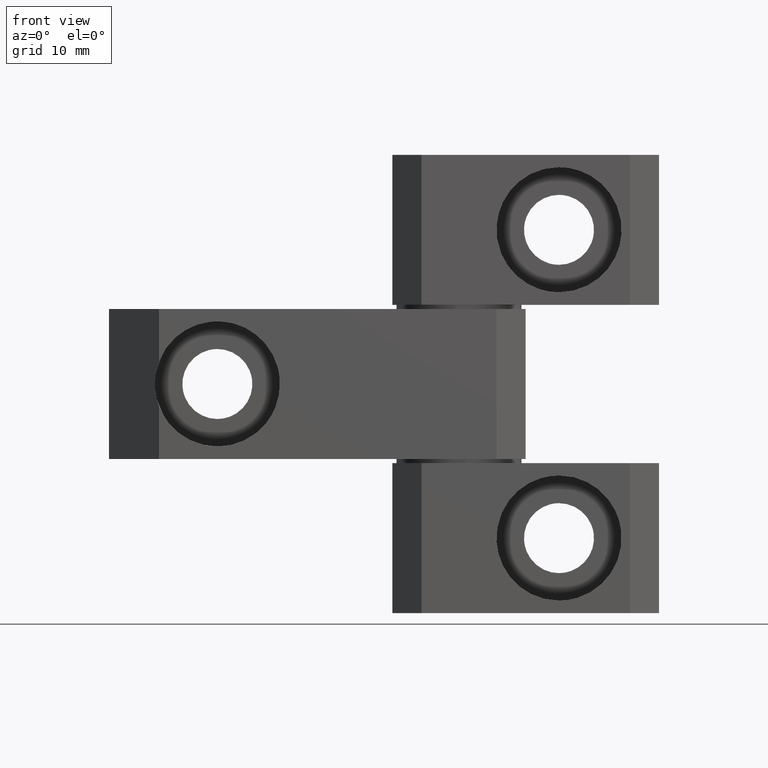
[diagram: clean part render]
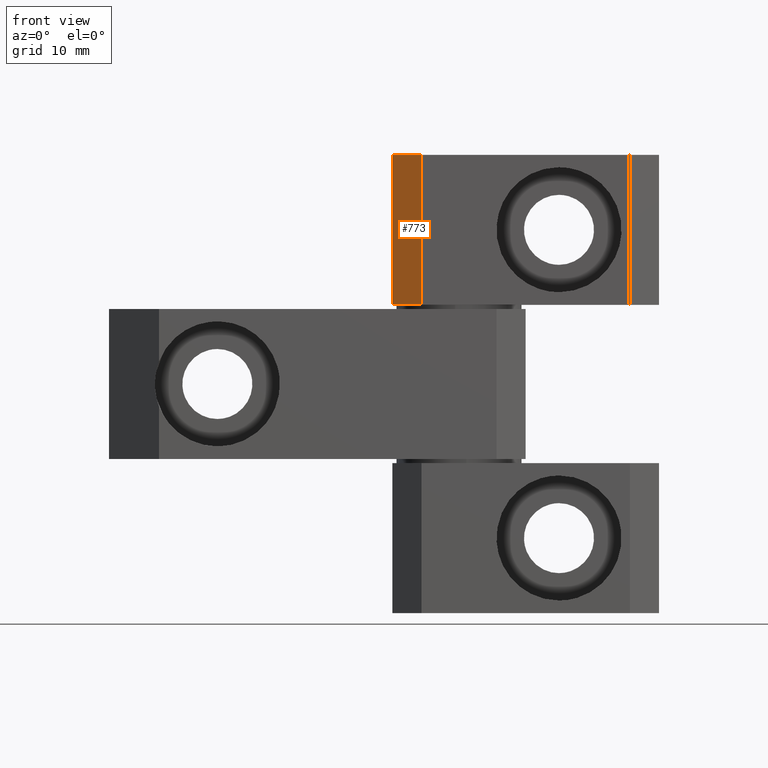
[diagram: same view with one face highlighted and labeled with its STEP entity id]
A machine part, front view. The second image highlights one B-rep face of the part: STEP entity #773.
In plain terms, the highlighted face is a freeform B-spline surface patch.
Its self-contained STEP definition (entity closure, byte-faithful):
#629=CARTESIAN_POINT('',(-4.500000213738479,-8.000000854954099,55.000002612359800));
#630=VERTEX_POINT('',#629);
#631=CARTESIAN_POINT('',(-8.000000379979600,-4.500000688713071,55.000002612359800));
#632=VERTEX_POINT('',#631);
#633=CARTESIAN_POINT('',(-4.500000213738479,-8.000000854954099,55.000002612359800));
#634=CARTESIAN_POINT('',(-8.000000379979600,-4.500000688713071,55.000002612359800));
#635=QUASI_UNIFORM_CURVE('',1,(#633,#634),.UNSPECIFIED.,.F.,.U.);
#636=EDGE_CURVE('',#630,#632,#635,.T.);
#737=CARTESIAN_POINT('',(-8.000000379979600,-4.500000688713071,37.000001757405549));
#738=VERTEX_POINT('',#737);
#744=CARTESIAN_POINT('',(-8.000000379979600,-4.500000688713071,37.000001757405549));
#745=CARTESIAN_POINT('',(-8.000000379979600,-4.500000688713071,55.000002612359800));
#746=QUASI_UNIFORM_CURVE('',1,(#744,#745),.UNSPECIFIED.,.F.,.U.);
#747=EDGE_CURVE('',#738,#632,#746,.T.);
#752=CARTESIAN_POINT('',(-8.174825315788661,-4.325175752903999,36.100899826597022));
#753=CARTESIAN_POINT('',(-4.325175121467209,-8.174825947225363,36.100899826597022));
#754=CARTESIAN_POINT('',(-8.174825315788661,-4.325175752903999,55.899104543168349));
#755=CARTESIAN_POINT('',(-4.325175121467209,-8.174825947225363,55.899104543168349));
#756=B_SPLINE_SURFACE_WITH_KNOTS('',1,1,((#752,#754),(#753,#755)),.UNSPECIFIED.,.F.,.F.,.U.,(2,2),(2,2),(0.0,5.444227515201556),(0.0,19.798204716571330),.UNSPECIFIED.);
#757=ORIENTED_EDGE('',*,*,#636,.T.);
#758=ORIENTED_EDGE('',*,*,#747,.F.);
#759=CARTESIAN_POINT('',(-4.500000213738479,-8.000000854954099,37.000001757405549));
#760=VERTEX_POINT('',#759);
#761=CARTESIAN_POINT('',(-4.500000213738479,-8.000000854954099,37.000001757405549));
#762=CARTESIAN_POINT('',(-8.000000379979600,-4.500000688713071,37.000001757405549));
#763=QUASI_UNIFORM_CURVE('',1,(#761,#762),.UNSPECIFIED.,.F.,.U.);
#764=EDGE_CURVE('',#760,#738,#763,.T.);
#765=ORIENTED_EDGE('',*,*,#764,.F.);
#766=CARTESIAN_POINT('',(-4.500000213738479,-8.000000854954099,37.000001757405549));
#767=CARTESIAN_POINT('',(-4.500000213738479,-8.000000854954099,55.000002612359800));
#768=QUASI_UNIFORM_CURVE('',1,(#766,#767),.UNSPECIFIED.,.F.,.U.);
#769=EDGE_CURVE('',#760,#630,#768,.T.);
#770=ORIENTED_EDGE('',*,*,#769,.T.);
#771=EDGE_LOOP('',(#757,#758,#765,#770));
#772=FACE_OUTER_BOUND('',#771,.T.);
#773=ADVANCED_FACE('',(#772),#756,.T.);